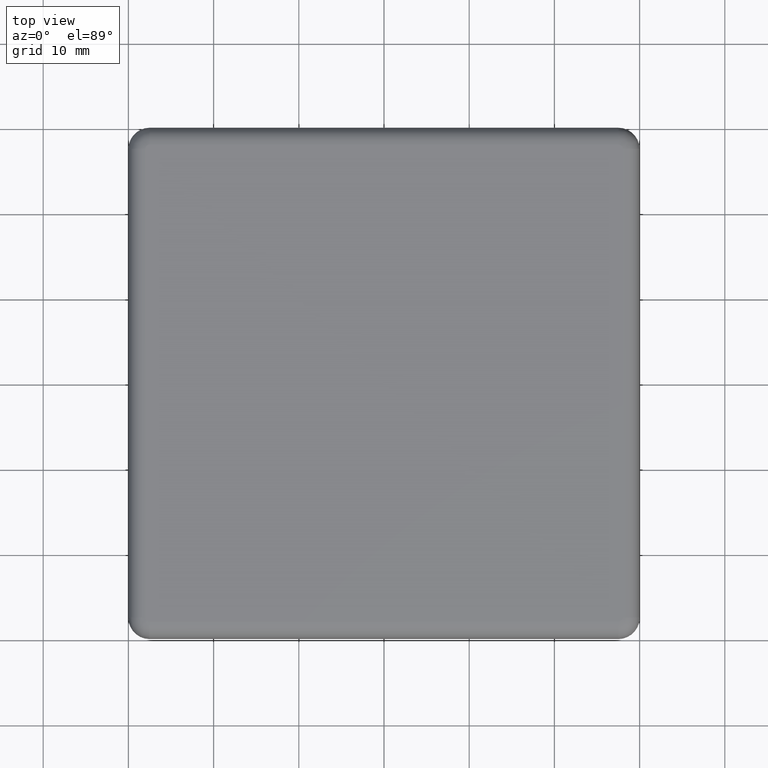
[diagram: clean part render]
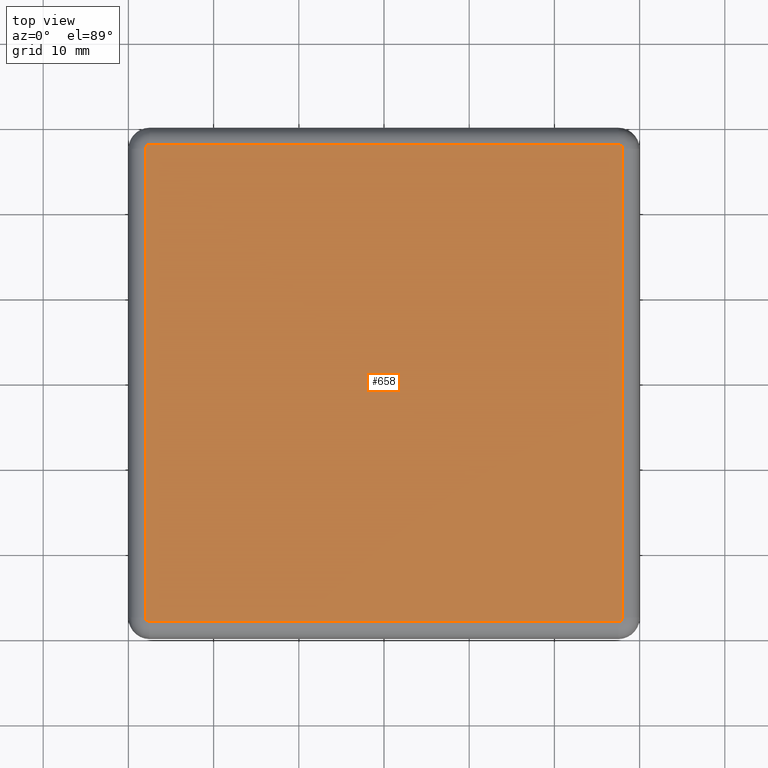
[diagram: same view with one face highlighted and labeled with its STEP entity id]
A machine part, top view. The second image highlights one B-rep face of the part: STEP entity #658.
In plain terms, the highlighted planar face has unit normal (0, 0, -1).
Its self-contained STEP definition (entity closure, byte-faithful):
#35=LINE('',#1184,#55);
#36=LINE('',#1188,#56);
#37=LINE('',#1192,#57);
#38=LINE('',#1195,#58);
#55=VECTOR('',#967,55.);
#56=VECTOR('',#970,55.);
#57=VECTOR('',#973,55.);
#58=VECTOR('',#976,55.);
#64=PLANE('',#758);
#154=FACE_OUTER_BOUND('',#224,.T.);
#224=EDGE_LOOP('',(#553,#554,#555,#556,#557,#558,#559,#560));
#297=CIRCLE('',#759,0.500000000000001);
#298=CIRCLE('',#760,0.500000000000001);
#299=CIRCLE('',#761,0.500000000000001);
#300=CIRCLE('',#762,0.500000000000001);
#365=VERTEX_POINT('',#1180);
#366=VERTEX_POINT('',#1181);
#367=VERTEX_POINT('',#1183);
#368=VERTEX_POINT('',#1185);
#369=VERTEX_POINT('',#1187);
#370=VERTEX_POINT('',#1189);
#371=VERTEX_POINT('',#1191);
#372=VERTEX_POINT('',#1193);
#437=EDGE_CURVE('',#365,#366,#297,.T.);
#438=EDGE_CURVE('',#366,#367,#35,.T.);
#439=EDGE_CURVE('',#367,#368,#298,.T.);
#440=EDGE_CURVE('',#368,#369,#36,.T.);
#441=EDGE_CURVE('',#369,#370,#299,.T.);
#442=EDGE_CURVE('',#370,#371,#37,.T.);
#443=EDGE_CURVE('',#371,#372,#300,.T.);
#444=EDGE_CURVE('',#372,#365,#38,.T.);
#553=ORIENTED_EDGE('',*,*,#437,.T.);
#554=ORIENTED_EDGE('',*,*,#438,.T.);
#555=ORIENTED_EDGE('',*,*,#439,.T.);
#556=ORIENTED_EDGE('',*,*,#440,.T.);
#557=ORIENTED_EDGE('',*,*,#441,.T.);
#558=ORIENTED_EDGE('',*,*,#442,.T.);
#559=ORIENTED_EDGE('',*,*,#443,.T.);
#560=ORIENTED_EDGE('',*,*,#444,.T.);
#658=ADVANCED_FACE('',(#154),#64,.F.);
#758=AXIS2_PLACEMENT_3D('',#1179,#963,#964);
#759=AXIS2_PLACEMENT_3D('',#1182,#965,#966);
#760=AXIS2_PLACEMENT_3D('',#1186,#968,#969);
#761=AXIS2_PLACEMENT_3D('',#1190,#971,#972);
#762=AXIS2_PLACEMENT_3D('',#1194,#974,#975);
#963=DIRECTION('center_axis',(0.,0.,-1.));
#964=DIRECTION('ref_axis',(-1.,0.,0.));
#965=DIRECTION('center_axis',(0.,0.,1.));
#966=DIRECTION('ref_axis',(-1.,0.,0.));
#967=DIRECTION('',(-1.,0.,0.));
#968=DIRECTION('center_axis',(0.,0.,1.));
#969=DIRECTION('ref_axis',(-1.,0.,0.));
#970=DIRECTION('',(0.,-1.,0.));
#971=DIRECTION('center_axis',(0.,0.,1.));
#972=DIRECTION('ref_axis',(-1.,0.,0.));
#973=DIRECTION('',(1.,0.,0.));
#974=DIRECTION('center_axis',(0.,0.,1.));
#975=DIRECTION('ref_axis',(-1.,0.,0.));
#976=DIRECTION('',(0.,1.,0.));
#1179=CARTESIAN_POINT('Origin',(30.8,-0.800000000000004,3.));
#1180=CARTESIAN_POINT('',(28.,57.5,3.));
#1181=CARTESIAN_POINT('',(27.5,58.,3.));
#1182=CARTESIAN_POINT('Origin',(27.5,57.5,3.));
#1183=CARTESIAN_POINT('',(-27.5,58.,3.));
#1184=CARTESIAN_POINT('',(27.5,58.,3.));
#1185=CARTESIAN_POINT('',(-28.,57.5,3.));
#1186=CARTESIAN_POINT('Origin',(-27.5,57.5,3.));
#1187=CARTESIAN_POINT('',(-28.,2.5,3.));
#1188=CARTESIAN_POINT('',(-28.,57.5,3.));
#1189=CARTESIAN_POINT('',(-27.5,2.,3.));
#1190=CARTESIAN_POINT('Origin',(-27.5,2.5,3.));
#1191=CARTESIAN_POINT('',(27.5,2.,3.));
#1192=CARTESIAN_POINT('',(-27.5,2.,3.));
#1193=CARTESIAN_POINT('',(28.,2.5,3.));
#1194=CARTESIAN_POINT('Origin',(27.5,2.5,3.));
#1195=CARTESIAN_POINT('',(28.,2.5,3.));